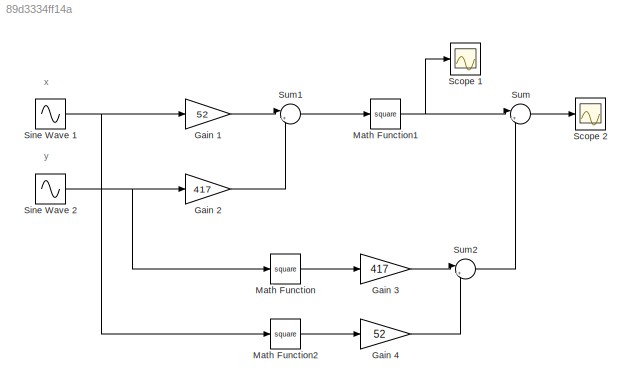
MODEL slx_89d3334ff14a
KIND model
CONFIG AbsTol = auto
CONFIG EnableMultiTasking = on
CONFIG FixedStep = auto
CONFIG MaxStep = auto
CONFIG MinStep = auto
CONFIG RelTol = 1e-3
CONFIG SampleTimeConstraint = Unconstrained
CONFIG SolverName = VariableStepAuto
CONFIG StartTime = 0.0
CONFIG StopTime = 10.0
BLOCK [Gain] Gain 1
  Gain = 52
BLOCK [Gain] Gain 2
  Gain = 417
BLOCK [Gain] Gain 3
  Gain = 417
BLOCK [Gain] Gain 4
  Gain = 52
BLOCK [Math] Math Function
  Operator = square
  Ports = [1, 1]
  SignedPower = on
BLOCK [Math] Math Function1
  Operator = square
  Ports = [1, 1]
  SignedPower = on
BLOCK [Math] Math Function2
  Operator = square
  Ports = [1, 1]
  SignedPower = on
BLOCK [Scope] Scope 1
  Floating = off
  NumInputPorts = 1
  Ports = [1]
  ScopeSpecificationString = Simulink.scopes.TimeScopeBlockCfg('CurrentConfiguration', extmgr.ConfigurationSet(extmgr.Configuration('Core','General UI',true),extmgr.Configuration('Core','Source UI',true),extmgr.Configuration('Sources','WiredSimulink',true,'DataLoggingVariableName','ScopeData1'),extmgr.Configuration('Visuals','Time Domain',true,'SerializedDisplays',{struct('MinYLimReal','-1.02545','MaxYLimReal','9.22907','YLab...<+1373ch>
BLOCK [Scope] Scope 2
  Floating = off
  NumInputPorts = 1
  Ports = [1]
  ScopeSpecificationString = Simulink.scopes.TimeScopeBlockCfg('CurrentConfiguration', extmgr.ConfigurationSet(extmgr.Configuration('Core','General UI',true),extmgr.Configuration('Core','Source UI',true),extmgr.Configuration('Sources','WiredSimulink',true),extmgr.Configuration('Visuals','Time Domain',true,'SerializedDisplays',{struct('MinYLimReal','-4.64251','MaxYLimReal','4.64251','YLabelReal','','MinYLimMag','0.00000','MaxY...<+1323ch>
BLOCK [Sin] Sine Wave 1
  Ports = [0, 1]
  SampleTime = 0.00001
BLOCK [Sin] Sine Wave 2
  Frequency = 2
  Ports = [0, 1]
  SampleTime = 0.00001
BLOCK [Sum] Sum
  Inputs = |+-
  Ports = [2, 1]
BLOCK [Sum] Sum1
  Inputs = |++
  Ports = [2, 1]
BLOCK [Sum] Sum2
  Inputs = |++
  Ports = [2, 1]
ANNOTATION (root): x
ANNOTATION (root): y
LINE Gain 1:1 -> Sum1:1
LINE Gain 2:1 -> Sum1:2
LINE Gain 3:1 -> Sum2:1
LINE Gain 4:1 -> Sum2:2
NET Math Function1:1 -> Scope 1:1, Sum:1
LINE Math Function2:1 -> Gain 4:1
LINE Math Function:1 -> Gain 3:1
NET Sine Wave 1:1 -> Gain 1:1, Math Function2:1
NET Sine Wave 2:1 -> Gain 2:1, Math Function:1
LINE Sum1:1 -> Math Function1:1
LINE Sum2:1 -> Sum:2
LINE Sum:1 -> Scope 2:1
note: NET lines group one-source signal fan-out (src -> all destinations, sorted); 1:1 wires keep LINE
